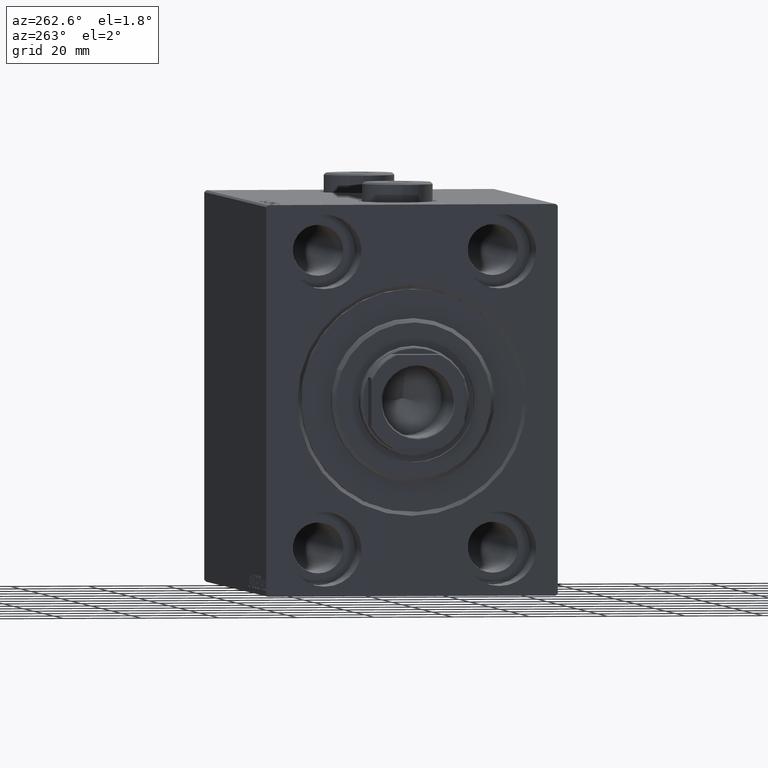
[diagram: clean part render]
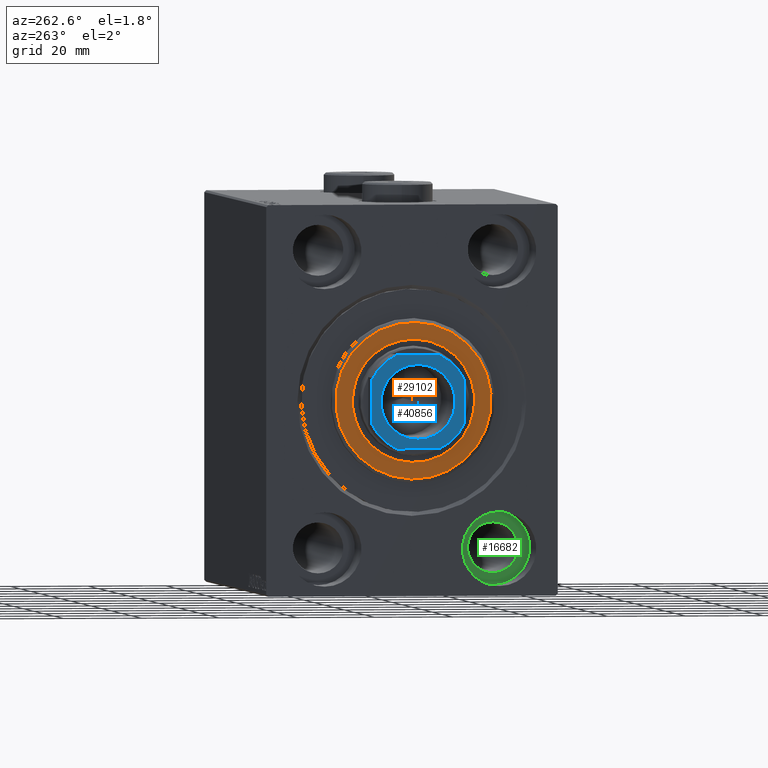
[diagram: same view with three faces highlighted in distinct colors, each labeled with its STEP entity id]
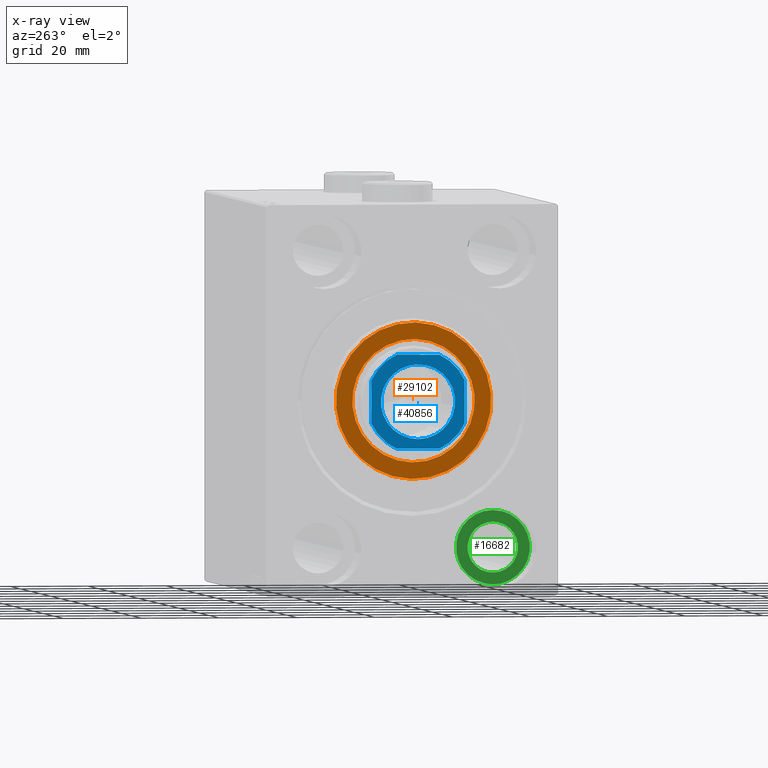
[diagram: x-ray of the same camera — body ghosted, the three highlighted faces saturated]
A machine part, auxiliary view with three faces highlighted in distinct colors.
The next image is the same camera in x-ray (body ghosted, the three faces saturated) — at least one of them is partly hidden behind the body in this view.
Their STEP definitions:

[orange] entity #29102 — the highlighted planar face has unit normal (-1, 0, 0).
#1221 = ORIENTED_EDGE ( 'NONE', *, *, #35671, .T. ) ;
#1451 = DIRECTION ( 'NONE',  ( 0.000000000000000000, 0.000000000000000000, -1.000000000000000000 ) ) ;
#1632 = ORIENTED_EDGE ( 'NONE', *, *, #33706, .T. ) ;
#1668 = EDGE_CURVE ( 'NONE', #44432, #31928, #15696, .T. ) ;
#2379 = CARTESIAN_POINT ( 'NONE',  ( 3.000000000000000000, 0.000000000000000000, 0.000000000000000000 ) ) ;
#2395 = PLANE ( 'NONE',  #6966 ) ;
#4312 = DIRECTION ( 'NONE',  ( -1.000000000000000000, 0.000000000000000000, -0.000000000000000000 ) ) ;
#5163 = FACE_OUTER_BOUND ( 'NONE', #34197, .T. ) ;
#5376 = DIRECTION ( 'NONE',  ( 0.000000000000000000, 0.000000000000000000, -1.000000000000000000 ) ) ;
#6966 = AXIS2_PLACEMENT_3D ( 'NONE', #40447, #26919, #5376 ) ;
#7127 = AXIS2_PLACEMENT_3D ( 'NONE', #32292, #11676, #14877 ) ;
#7976 = DIRECTION ( 'NONE',  ( 0.000000000000000000, 0.000000000000000000, -1.000000000000000000 ) ) ;
#9917 = DIRECTION ( 'NONE',  ( 0.000000000000000000, 0.000000000000000000, -1.000000000000000000 ) ) ;
#10939 = CIRCLE ( 'NONE', #37322, 15.75000000000000000 ) ;
#11676 = DIRECTION ( 'NONE',  ( 1.000000000000000000, -0.000000000000000000, 0.000000000000000000 ) ) ;
#13514 = VERTEX_POINT ( 'NONE', #27471 ) ;
#14545 = EDGE_LOOP ( 'NONE', ( #24156, #20834 ) ) ;
#14877 = DIRECTION ( 'NONE',  ( 0.000000000000000000, 0.000000000000000000, -1.000000000000000000 ) ) ;
#15696 = CIRCLE ( 'NONE', #28843, 15.75000000000000000 ) ;
#16337 = CARTESIAN_POINT ( 'NONE',  ( 3.000000000000000000, 0.000000000000000000, 0.000000000000000000 ) ) ;
#20442 = EDGE_CURVE ( 'NONE', #31928, #44432, #10939, .T. ) ;
#20834 = ORIENTED_EDGE ( 'NONE', *, *, #20442, .T. ) ;
#21042 = CIRCLE ( 'NONE', #7127, 19.99999999999999645 ) ;
#22194 = CARTESIAN_POINT ( 'NONE',  ( 3.000000000000000000, 0.000000000000000000, 19.99999999999999645 ) ) ;
#24156 = ORIENTED_EDGE ( 'NONE', *, *, #1668, .T. ) ;
#24674 = CIRCLE ( 'NONE', #34900, 19.99999999999999645 ) ;
#26919 = DIRECTION ( 'NONE',  ( 1.000000000000000000, -0.000000000000000000, 0.000000000000000000 ) ) ;
#27471 = CARTESIAN_POINT ( 'NONE',  ( 3.000000000000000000, 2.510525938252074087E-15, -19.99999999999999645 ) ) ;
#28560 = CARTESIAN_POINT ( 'NONE',  ( 3.000000000000000000, 0.000000000000000000, 15.75000000000000000 ) ) ;
#28843 = AXIS2_PLACEMENT_3D ( 'NONE', #2379, #35283, #9917 ) ;
#29102 = ADVANCED_FACE ( 'NONE', ( #5163, #30128 ), #2395, .T. ) ;
#30128 = FACE_BOUND ( 'NONE', #14545, .T. ) ;
#31928 = VERTEX_POINT ( 'NONE', #32482 ) ;
#32292 = CARTESIAN_POINT ( 'NONE',  ( 3.000000000000000000, 0.000000000000000000, 0.000000000000000000 ) ) ;
#32482 = CARTESIAN_POINT ( 'NONE',  ( 3.000000000000000000, 1.928818708657080950E-15, -15.75000000000000000 ) ) ;
#32849 = DIRECTION ( 'NONE',  ( 1.000000000000000000, -0.000000000000000000, 0.000000000000000000 ) ) ;
#33706 = EDGE_CURVE ( 'NONE', #13514, #36779, #24674, .T. ) ;
#34197 = EDGE_LOOP ( 'NONE', ( #1221, #1632 ) ) ;
#34900 = AXIS2_PLACEMENT_3D ( 'NONE', #16337, #32849, #1451 ) ;
#35283 = DIRECTION ( 'NONE',  ( -1.000000000000000000, 0.000000000000000000, -0.000000000000000000 ) ) ;
#35671 = EDGE_CURVE ( 'NONE', #36779, #13514, #21042, .T. ) ;
#36779 = VERTEX_POINT ( 'NONE', #22194 ) ;
#37322 = AXIS2_PLACEMENT_3D ( 'NONE', #43048, #4312, #7976 ) ;
#40447 = CARTESIAN_POINT ( 'NONE',  ( 3.000000000000000000, 0.000000000000000000, 0.000000000000000000 ) ) ;
#43048 = CARTESIAN_POINT ( 'NONE',  ( 3.000000000000000000, 0.000000000000000000, 0.000000000000000000 ) ) ;
#44432 = VERTEX_POINT ( 'NONE', #28560 ) ;

[blue] entity #40856 — the highlighted planar face has unit normal (-1, 0, 0).
#1895 = DIRECTION ( 'NONE',  ( -2.168404344971008868E-16, 1.000000000000000000, -0.000000000000000000 ) ) ;
#2130 = CIRCLE ( 'NONE', #40943, 9.549999999999961631 ) ;
#2182 = FACE_BOUND ( 'NONE', #19321, .T. ) ;
#2752 = DIRECTION ( 'NONE',  ( -0.000000000000000000, 0.000000000000000000, 1.000000000000000000 ) ) ;
#2915 = CARTESIAN_POINT ( 'NONE',  ( 0.000000000000000000, 0.000000000000000000, 121.0000000000000142 ) ) ;
#2982 = DIRECTION ( 'NONE',  ( 1.000000000000000000, 0.000000000000000000, 0.000000000000000000 ) ) ;
#3582 = VECTOR ( 'NONE', #20184, 1000.000000000000000 ) ;
#4175 = CARTESIAN_POINT ( 'NONE',  ( -12.00000000000000000, -5.499090833947100521, 121.0000000000000142 ) ) ;
#4280 = VECTOR ( 'NONE', #32473, 1000.000000000000000 ) ;
#5102 = ORIENTED_EDGE ( 'NONE', *, *, #43435, .T. ) ;
#5182 = VERTEX_POINT ( 'NONE', #32452 ) ;
#5349 = CARTESIAN_POINT ( 'NONE',  ( 0.000000000000000000, 0.000000000000000000, 121.0000000000000142 ) ) ;
#5480 = AXIS2_PLACEMENT_3D ( 'NONE', #38130, #33999, #20926 ) ;
#5829 = CARTESIAN_POINT ( 'NONE',  ( 5.499090833947038348, -12.00000000000000355, 121.0000000000000142 ) ) ;
#6244 = DIRECTION ( 'NONE',  ( 1.000000000000000000, 0.000000000000000000, 0.000000000000000000 ) ) ;
#7981 = CIRCLE ( 'NONE', #39463, 13.20000000000004192 ) ;
#8089 = CARTESIAN_POINT ( 'NONE',  ( 11.99999999999999645, 11.99999999999999645, 121.0000000000000142 ) ) ;
#8295 = EDGE_CURVE ( 'NONE', #35914, #41401, #42810, .T. ) ;
#8383 = VERTEX_POINT ( 'NONE', #28924 ) ;
#9097 = CARTESIAN_POINT ( 'NONE',  ( -5.499090833947095192, -12.00000000000000355, 121.0000000000000142 ) ) ;
#11184 = DIRECTION ( 'NONE',  ( 1.000000000000000000, 0.000000000000000000, 0.000000000000000000 ) ) ;
#12347 = VERTEX_POINT ( 'NONE', #4175 ) ;
#12943 = VECTOR ( 'NONE', #24778, 1000.000000000000000 ) ;
#13106 = CARTESIAN_POINT ( 'NONE',  ( 9.549999999999961631, 0.000000000000000000, 121.0000000000000142 ) ) ;
#13369 = EDGE_CURVE ( 'NONE', #5182, #12347, #42173, .T. ) ;
#13586 = DIRECTION ( 'NONE',  ( -0.000000000000000000, 0.000000000000000000, 1.000000000000000000 ) ) ;
#13744 = CARTESIAN_POINT ( 'NONE',  ( -12.00000000000000355, 11.99999999999999645, 121.0000000000000142 ) ) ;
#13761 = CIRCLE ( 'NONE', #20352, 13.20000000000001528 ) ;
#13815 = CIRCLE ( 'NONE', #35041, 9.549999999999961631 ) ;
#14297 = ORIENTED_EDGE ( 'NONE', *, *, #26439, .T. ) ;
#15033 = ORIENTED_EDGE ( 'NONE', *, *, #24755, .T. ) ;
#16170 = PLANE ( 'NONE',  #34961 ) ;
#16819 = CARTESIAN_POINT ( 'NONE',  ( 0.000000000000000000, 0.000000000000000000, 121.0000000000000142 ) ) ;
#17812 = CARTESIAN_POINT ( 'NONE',  ( 11.99999999999999645, 5.499090833947053447, 121.0000000000000142 ) ) ;
#19010 = ORIENTED_EDGE ( 'NONE', *, *, #19370, .T. ) ;
#19321 = EDGE_LOOP ( 'NONE', ( #43828, #15033 ) ) ;
#19370 = EDGE_CURVE ( 'NONE', #41401, #8383, #43913, .T. ) ;
#19418 = EDGE_CURVE ( 'NONE', #12347, #25960, #20444, .T. ) ;
#20184 = DIRECTION ( 'NONE',  ( -1.000000000000000000, -0.000000000000000000, -0.000000000000000000 ) ) ;
#20352 = AXIS2_PLACEMENT_3D ( 'NONE', #16819, #13586, #31001 ) ;
#20444 = CIRCLE ( 'NONE', #26303, 13.20000000000004015 ) ;
#20926 = DIRECTION ( 'NONE',  ( 1.000000000000000000, 0.000000000000000000, 0.000000000000000000 ) ) ;
#21550 = CARTESIAN_POINT ( 'NONE',  ( -12.00000000000000355, 11.99999999999999645, 121.0000000000000142 ) ) ;
#21920 = ORIENTED_EDGE ( 'NONE', *, *, #8295, .T. ) ;
#23093 = ORIENTED_EDGE ( 'NONE', *, *, #13369, .T. ) ;
#23117 = ORIENTED_EDGE ( 'NONE', *, *, #42645, .T. ) ;
#24755 = EDGE_CURVE ( 'NONE', #28631, #30275, #13815, .T. ) ;
#24778 = DIRECTION ( 'NONE',  ( 2.168404344971008868E-16, -1.000000000000000000, 0.000000000000000000 ) ) ;
#25036 = ORIENTED_EDGE ( 'NONE', *, *, #40652, .T. ) ;
#25200 = VECTOR ( 'NONE', #1895, 1000.000000000000000 ) ;
#25960 = VERTEX_POINT ( 'NONE', #9097 ) ;
#26303 = AXIS2_PLACEMENT_3D ( 'NONE', #31394, #2752, #2982 ) ;
#26439 = EDGE_CURVE ( 'NONE', #34678, #35914, #30083, .T. ) ;
#27971 = VERTEX_POINT ( 'NONE', #5829 ) ;
#28631 = VERTEX_POINT ( 'NONE', #42111 ) ;
#28924 = CARTESIAN_POINT ( 'NONE',  ( -5.499090833947114731, 11.99999999999999645, 121.0000000000000142 ) ) ;
#29351 = CARTESIAN_POINT ( 'NONE',  ( 5.499090833947055224, 11.99999999999999645, 121.0000000000000142 ) ) ;
#30083 = LINE ( 'NONE', #8089, #25200 ) ;
#30123 = LINE ( 'NONE', #33786, #4280 ) ;
#30137 = CARTESIAN_POINT ( 'NONE',  ( 0.000000000000000000, 0.000000000000000000, 121.0000000000000142 ) ) ;
#30275 = VERTEX_POINT ( 'NONE', #13106 ) ;
#30640 = DIRECTION ( 'NONE',  ( 1.000000000000000000, 0.000000000000000000, 0.000000000000000000 ) ) ;
#31001 = DIRECTION ( 'NONE',  ( 1.000000000000000000, 0.000000000000000000, 0.000000000000000000 ) ) ;
#31394 = CARTESIAN_POINT ( 'NONE',  ( 0.000000000000000000, 0.000000000000000000, 121.0000000000000142 ) ) ;
#32039 = CARTESIAN_POINT ( 'NONE',  ( 0.000000000000000000, 0.000000000000000000, 121.0000000000000142 ) ) ;
#32452 = CARTESIAN_POINT ( 'NONE',  ( -12.00000000000000178, 5.499090833947104073, 121.0000000000000142 ) ) ;
#32473 = DIRECTION ( 'NONE',  ( 1.000000000000000000, 0.000000000000000000, 0.000000000000000000 ) ) ;
#33786 = CARTESIAN_POINT ( 'NONE',  ( -11.99999999999999822, -12.00000000000000355, 121.0000000000000142 ) ) ;
#33999 = DIRECTION ( 'NONE',  ( -0.000000000000000000, 0.000000000000000000, 1.000000000000000000 ) ) ;
#34250 = DIRECTION ( 'NONE',  ( 1.000000000000000000, 0.000000000000000000, 0.000000000000000000 ) ) ;
#34308 = ORIENTED_EDGE ( 'NONE', *, *, #19418, .T. ) ;
#34678 = VERTEX_POINT ( 'NONE', #39456 ) ;
#34961 = AXIS2_PLACEMENT_3D ( 'NONE', #30137, #44117, #34250 ) ;
#35041 = AXIS2_PLACEMENT_3D ( 'NONE', #2915, #37747, #30640 ) ;
#35254 = DIRECTION ( 'NONE',  ( -0.000000000000000000, 0.000000000000000000, 1.000000000000000000 ) ) ;
#35914 = VERTEX_POINT ( 'NONE', #17812 ) ;
#37747 = DIRECTION ( 'NONE',  ( 0.000000000000000000, -0.000000000000000000, -1.000000000000000000 ) ) ;
#38130 = CARTESIAN_POINT ( 'NONE',  ( 0.000000000000000000, 0.000000000000000000, 121.0000000000000142 ) ) ;
#39456 = CARTESIAN_POINT ( 'NONE',  ( 12.00000000000000000, -5.499090833947048118, 121.0000000000000142 ) ) ;
#39463 = AXIS2_PLACEMENT_3D ( 'NONE', #32039, #35254, #11184 ) ;
#40652 = EDGE_CURVE ( 'NONE', #8383, #5182, #7981, .T. ) ;
#40856 = ADVANCED_FACE ( 'NONE', ( #2182, #41133 ), #16170, .T. ) ;
#40871 = DIRECTION ( 'NONE',  ( 0.000000000000000000, -0.000000000000000000, -1.000000000000000000 ) ) ;
#40943 = AXIS2_PLACEMENT_3D ( 'NONE', #5349, #40871, #6244 ) ;
#41133 = FACE_OUTER_BOUND ( 'NONE', #43990, .T. ) ;
#41401 = VERTEX_POINT ( 'NONE', #29351 ) ;
#42111 = CARTESIAN_POINT ( 'NONE',  ( -9.549999999999961631, 1.169537693185717431E-15, 121.0000000000000142 ) ) ;
#42173 = LINE ( 'NONE', #21550, #12943 ) ;
#42645 = EDGE_CURVE ( 'NONE', #27971, #34678, #13761, .T. ) ;
#42810 = CIRCLE ( 'NONE', #5480, 13.20000000000001705 ) ;
#43435 = EDGE_CURVE ( 'NONE', #25960, #27971, #30123, .T. ) ;
#43828 = ORIENTED_EDGE ( 'NONE', *, *, #44824, .T. ) ;
#43913 = LINE ( 'NONE', #13744, #3582 ) ;
#43990 = EDGE_LOOP ( 'NONE', ( #14297, #21920, #19010, #25036, #23093, #34308, #5102, #23117 ) ) ;
#44117 = DIRECTION ( 'NONE',  ( -0.000000000000000000, 0.000000000000000000, 1.000000000000000000 ) ) ;
#44824 = EDGE_CURVE ( 'NONE', #30275, #28631, #2130, .T. ) ;

[green] entity #16682 — the highlighted planar face has unit normal (-1, 0, 0).
#2083 = AXIS2_PLACEMENT_3D ( 'NONE', #38128, #27133, #20705 ) ;
#2825 = ORIENTED_EDGE ( 'NONE', *, *, #20266, .F. ) ;
#3499 = CARTESIAN_POINT ( 'NONE',  ( 13.00000000000000000, -22.50000000000000711, -37.99999999999999289 ) ) ;
#4279 = VERTEX_POINT ( 'NONE', #34200 ) ;
#8873 = ORIENTED_EDGE ( 'NONE', *, *, #38312, .F. ) ;
#9382 = DIRECTION ( 'NONE',  ( -1.000000000000000000, 0.000000000000000000, 0.000000000000000000 ) ) ;
#10522 = CIRCLE ( 'NONE', #34713, 9.500000000000001776 ) ;
#11285 = EDGE_CURVE ( 'NONE', #4279, #41790, #18777, .T. ) ;
#13448 = CARTESIAN_POINT ( 'NONE',  ( 12.99999999999999822, -22.50000000000000711, -31.49999999999999289 ) ) ;
#14038 = DIRECTION ( 'NONE',  ( -1.000000000000000000, 0.000000000000000000, 0.000000000000000000 ) ) ;
#15860 = AXIS2_PLACEMENT_3D ( 'NONE', #3499, #14038, #28017 ) ;
#15938 = CARTESIAN_POINT ( 'NONE',  ( 13.00000000000000000, -22.50000000000000711, -37.99999999999999289 ) ) ;
#16486 = DIRECTION ( 'NONE',  ( 0.000000000000000000, 0.000000000000000000, 1.000000000000000000 ) ) ;
#16682 = ADVANCED_FACE ( 'NONE', ( #34665, #23690 ), #41561, .T. ) ;
#17752 = DIRECTION ( 'NONE',  ( -1.000000000000000000, 0.000000000000000000, 0.000000000000000000 ) ) ;
#18062 = CARTESIAN_POINT ( 'NONE',  ( 12.99999999999999822, -22.50000000000000711, -44.49999999999999289 ) ) ;
#18777 = CIRCLE ( 'NONE', #15860, 9.500000000000001776 ) ;
#20266 = EDGE_CURVE ( 'NONE', #38788, #21544, #23427, .T. ) ;
#20705 = DIRECTION ( 'NONE',  ( 0.000000000000000000, 0.000000000000000000, 1.000000000000000000 ) ) ;
#21544 = VERTEX_POINT ( 'NONE', #13448 ) ;
#23427 = CIRCLE ( 'NONE', #24144, 6.499999999999999112 ) ;
#23690 = FACE_OUTER_BOUND ( 'NONE', #43912, .T. ) ;
#24144 = AXIS2_PLACEMENT_3D ( 'NONE', #40785, #9382, #16486 ) ;
#24974 = ORIENTED_EDGE ( 'NONE', *, *, #27039, .T. ) ;
#27039 = EDGE_CURVE ( 'NONE', #41790, #4279, #10522, .T. ) ;
#27133 = DIRECTION ( 'NONE',  ( -1.000000000000000000, 0.000000000000000000, 0.000000000000000000 ) ) ;
#28017 = DIRECTION ( 'NONE',  ( 0.000000000000000000, 0.000000000000000000, 1.000000000000000000 ) ) ;
#28280 = DIRECTION ( 'NONE',  ( 0.000000000000000000, 0.000000000000000000, 1.000000000000000000 ) ) ;
#28516 = CARTESIAN_POINT ( 'NONE',  ( 13.00000000000000000, -22.50000000000000711, -47.49999999999999289 ) ) ;
#29152 = AXIS2_PLACEMENT_3D ( 'NONE', #42035, #17752, #28280 ) ;
#29687 = ORIENTED_EDGE ( 'NONE', *, *, #11285, .T. ) ;
#33582 = DIRECTION ( 'NONE',  ( 0.000000000000000000, 0.000000000000000000, 1.000000000000000000 ) ) ;
#34200 = CARTESIAN_POINT ( 'NONE',  ( 13.00000000000000000, -22.50000000000000711, -28.49999999999998934 ) ) ;
#34665 = FACE_BOUND ( 'NONE', #38359, .T. ) ;
#34713 = AXIS2_PLACEMENT_3D ( 'NONE', #15938, #40686, #33582 ) ;
#36484 = CIRCLE ( 'NONE', #29152, 6.499999999999999112 ) ;
#38128 = CARTESIAN_POINT ( 'NONE',  ( 13.00000000000000000, 0.000000000000000000, 0.000000000000000000 ) ) ;
#38312 = EDGE_CURVE ( 'NONE', #21544, #38788, #36484, .T. ) ;
#38359 = EDGE_LOOP ( 'NONE', ( #8873, #2825 ) ) ;
#38788 = VERTEX_POINT ( 'NONE', #18062 ) ;
#40686 = DIRECTION ( 'NONE',  ( -1.000000000000000000, 0.000000000000000000, 0.000000000000000000 ) ) ;
#40785 = CARTESIAN_POINT ( 'NONE',  ( 12.99999999999999822, -22.50000000000000711, -37.99999999999999289 ) ) ;
#41561 = PLANE ( 'NONE',  #2083 ) ;
#41790 = VERTEX_POINT ( 'NONE', #28516 ) ;
#42035 = CARTESIAN_POINT ( 'NONE',  ( 12.99999999999999822, -22.50000000000000711, -37.99999999999999289 ) ) ;
#43912 = EDGE_LOOP ( 'NONE', ( #29687, #24974 ) ) ;